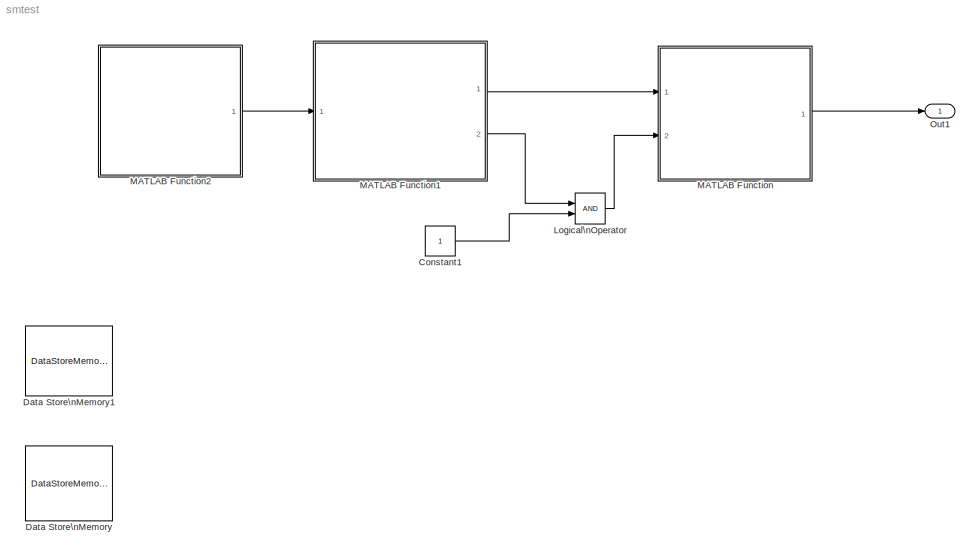
MODEL smtest
KIND model
BLOCK [Constant] Constant1
  OutDataTypeStr = boolean
  SID = 13
BLOCK [DataStoreMemory] Data Store\nMemory
  DataStoreName = unsend_changes
  InitialValue = 10
  OutDataTypeStr = double
  ReadBeforeWriteMsg = warning
  SID = 17
  SignalType = real
  WriteAfterReadMsg = warning
  WriteAfterWriteMsg = warning
BLOCK [DataStoreMemory] Data Store\nMemory1
  DataStoreName = locator
  OutDataTypeStr = double
  ReadBeforeWriteMsg = warning
  SID = 18
  SignalType = real
  WriteAfterReadMsg = warning
  WriteAfterWriteMsg = warning
BLOCK [Logic] Logical\nOperator
  AllPortsSameDT = off
  OutDataTypeStr = boolean
  Ports = [2, 1]
  SID = 4
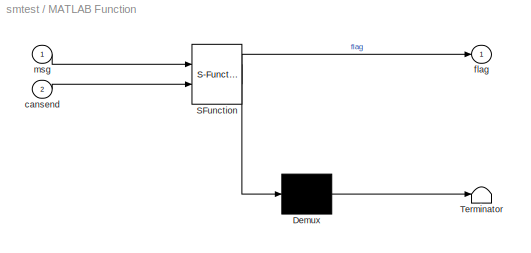
BLOCK [SubSystem] MATLAB Function
  ErrorFcn = Stateflow.Translate.translate
  PermitHierarchicalResolution = ExplicitOnly
  Ports = [2, 1]
  RequestExecContextInheritance = off
  SFBlockType = MATLAB Function
  SID = 5
  TreatAsAtomicUnit = on
BLOCK [Demux] MATLAB Function/ Demux 
  Outputs = 1
  Ports = [1, 1]
  SID = 5::19
BLOCK [S-Function] MATLAB Function/ SFunction 
  EnableBusSupport = on
  FunctionName = sf_sfun
  PortCounts = [2 2]
  Ports = [2, 2]
  SID = 5::18
  Tag = Stateflow S-Function smtest 2
BLOCK [Terminator] MATLAB Function/ Terminator 
  SID = 5::20
BLOCK [Inport] MATLAB Function/cansend
  IconDisplay = Port number
  Port = 2
  SID = 5::1
BLOCK [Outport] MATLAB Function/flag
  IconDisplay = Port number
  SID = 5::23
BLOCK [Inport] MATLAB Function/msg
  IconDisplay = Port number
  SID = 5::22
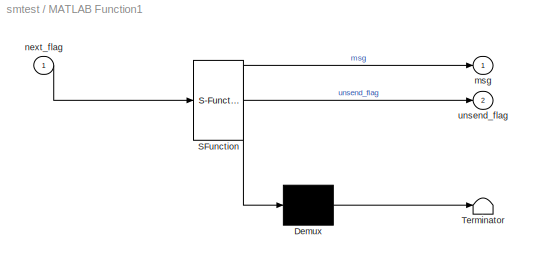
BLOCK [SubSystem] MATLAB Function1
  ErrorFcn = Stateflow.Translate.translate
  PermitHierarchicalResolution = ExplicitOnly
  Ports = [1, 2]
  RequestExecContextInheritance = off
  SFBlockType = MATLAB Function
  SID = 6
  TreatAsAtomicUnit = on
BLOCK [Demux] MATLAB Function1/ Demux 
  Outputs = 1
  Ports = [1, 1]
  SID = 6::19
BLOCK [S-Function] MATLAB Function1/ SFunction 
  EnableBusSupport = on
  FunctionName = sf_sfun
  PortCounts = [1 3]
  Ports = [1, 3]
  SID = 6::18
  Tag = Stateflow S-Function smtest 1
BLOCK [Terminator] MATLAB Function1/ Terminator 
  SID = 6::20
BLOCK [Outport] MATLAB Function1/msg
  IconDisplay = Port number
  SID = 6::5
BLOCK [Inport] MATLAB Function1/next_flag
  IconDisplay = Port number
  SID = 6::23
BLOCK [Outport] MATLAB Function1/unsend_flag
  IconDisplay = Port number
  Port = 2
  SID = 6::21
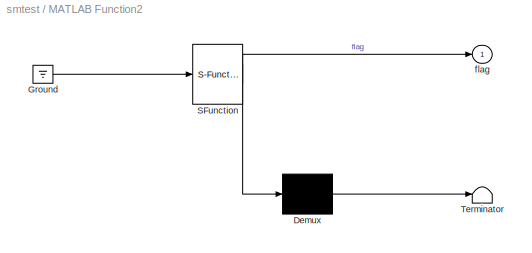
BLOCK [SubSystem] MATLAB Function2
  ErrorFcn = Stateflow.Translate.translate
  PermitHierarchicalResolution = ExplicitOnly
  Ports = [0, 1]
  RequestExecContextInheritance = off
  SFBlockType = MATLAB Function
  SID = 12
  TreatAsAtomicUnit = on
BLOCK [Demux] MATLAB Function2/ Demux 
  Outputs = 1
  Ports = [1, 1]
  SID = 12::19
BLOCK [Ground] MATLAB Function2/ Ground 
  SID = 12::29
BLOCK [S-Function] MATLAB Function2/ SFunction 
  EnableBusSupport = on
  FunctionName = sf_sfun
  PortCounts = [1 2]
  Ports = [1, 2]
  SID = 12::18
  Tag = Stateflow S-Function smtest 3
BLOCK [Terminator] MATLAB Function2/ Terminator 
  SID = 12::20
BLOCK [Outport] MATLAB Function2/flag
  IconDisplay = Port number
  SID = 12::25
BLOCK [Outport] Out1
  IconDisplay = Port number
  SID = 11
LINE Constant1:1 -> Logical\nOperator:2
LINE Logical\nOperator:1 -> MATLAB Function:2
LINE MATLAB Function/ Demux :1 -> MATLAB Function/ Terminator :1
LINE MATLAB Function/ SFunction :1 -> MATLAB Function/ Demux :1
LINE MATLAB Function/ SFunction :2 -> MATLAB Function/flag:1
LINE MATLAB Function/cansend:1 -> MATLAB Function/ SFunction :2
LINE MATLAB Function/msg:1 -> MATLAB Function/ SFunction :1
LINE MATLAB Function1/ Demux :1 -> MATLAB Function1/ Terminator :1
LINE MATLAB Function1/ SFunction :1 -> MATLAB Function1/ Demux :1
LINE MATLAB Function1/ SFunction :2 -> MATLAB Function1/msg:1
LINE MATLAB Function1/ SFunction :3 -> MATLAB Function1/unsend_flag:1
LINE MATLAB Function1/next_flag:1 -> MATLAB Function1/ SFunction :1
LINE MATLAB Function1:1 -> MATLAB Function:1
LINE MATLAB Function1:2 -> Logical\nOperator:1
LINE MATLAB Function2/ Demux :1 -> MATLAB Function2/ Terminator :1
LINE MATLAB Function2/ Ground :1 -> MATLAB Function2/ SFunction :1
LINE MATLAB Function2/ SFunction :1 -> MATLAB Function2/ Demux :1
LINE MATLAB Function2/ SFunction :2 -> MATLAB Function2/flag:1
LINE MATLAB Function2:1 -> MATLAB Function1:1
LINE MATLAB Function:1 -> Out1:1
CHART MATLAB Function1 states=1 transitions=1
  STATE_LABEL 'eML_blk_kernel()'
CHART MATLAB Function states=1 transitions=1
  STATE_LABEL 'eML_blk_kernel()'
CHART MATLAB Function2 states=1 transitions=1
  STATE_LABEL 'eML_blk_kernel()'
